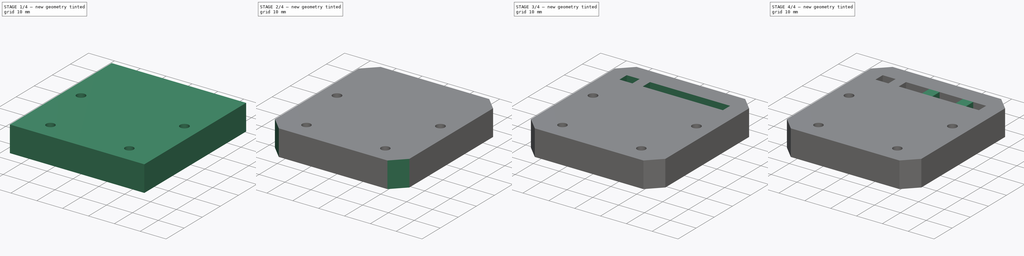
[diagram: build sequence overview — one tinted view per stage of 4, left to right]
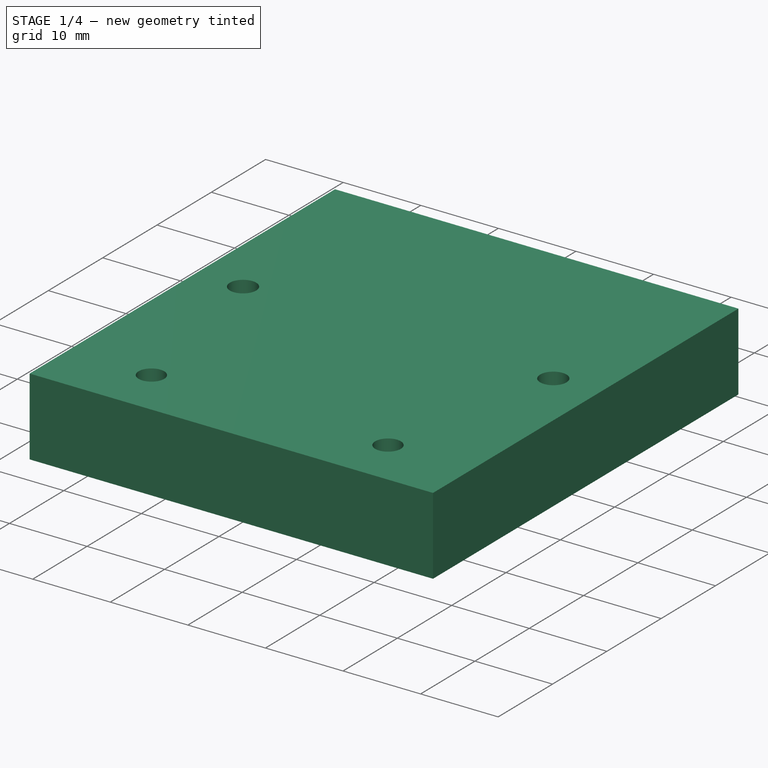
[diagram: stage 1 of 4 — iso view after this stage's code; geometry added in this stage tinted green]
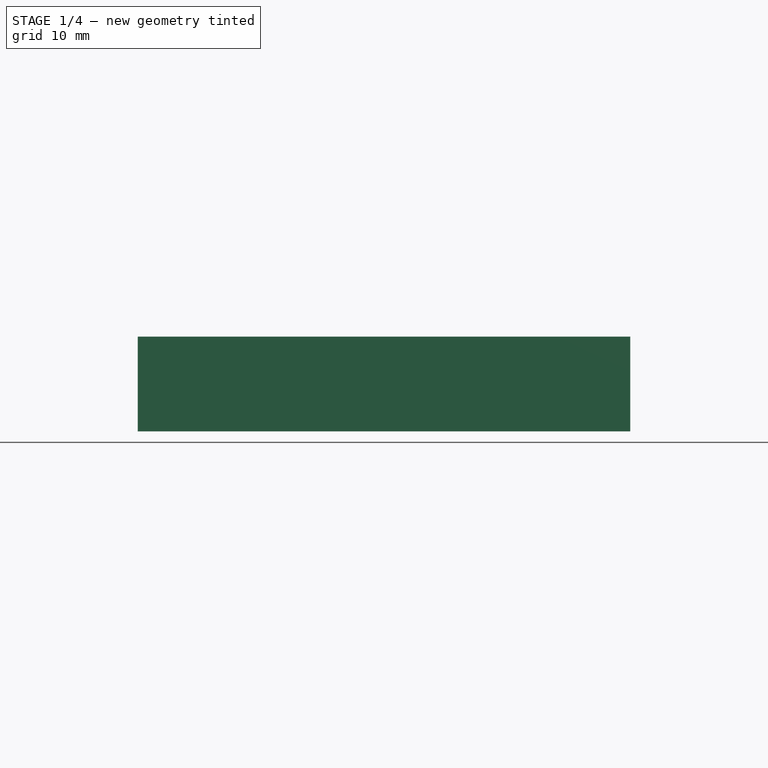
[diagram: stage 1 of 4 — front view after this stage's code; geometry added in this stage tinted green]
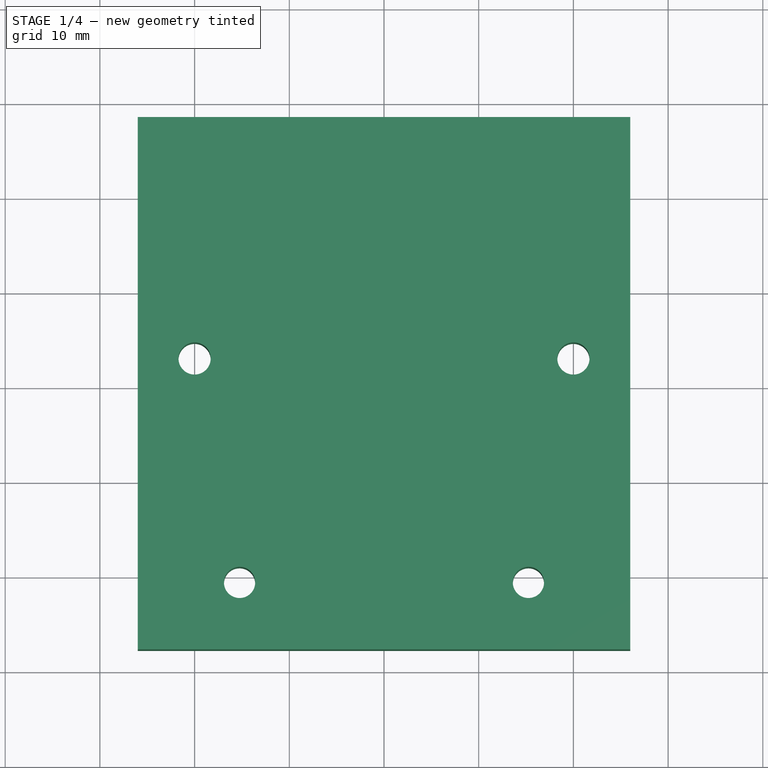
[diagram: stage 1 of 4 — top view after this stage's code; geometry added in this stage tinted green]
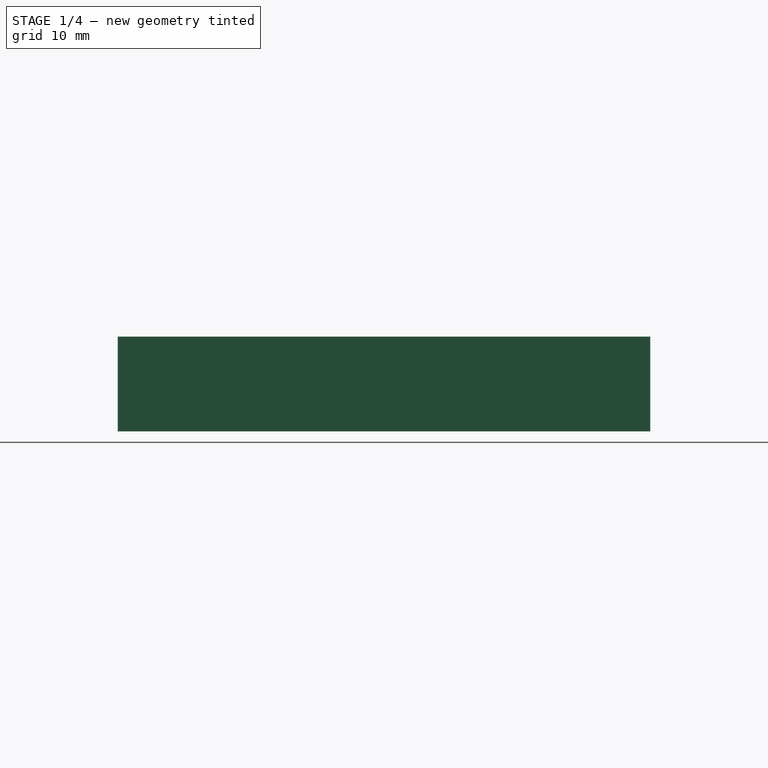
[diagram: stage 1 of 4 — right view after this stage's code; geometry added in this stage tinted green]
FCSTD DOCUMENT  (FreeCAD 0.19R)
Label: hotend-diamond-holder
License: All rights reserved
LicenseURL: http://en.wikipedia.org/wiki/All_rights_reserved
objects: Sketcher::SketchObject×6, PartDesign::Pad×3, PartDesign::Pocket×3, Part::Feature×1, PartDesign::ShapeBinder×1, PartDesign::Chamfer×1, PartDesign::LinearPattern×1, PartDesign::Fillet×1, PartDesign::Body×1
note: 26 computed .brp shape members not serialized (recipe doc carries the construction recipe); baked Part::Feature solids carry a one-line shape summary decoded from their .brp

FEATURE [Part::Feature] Body001
  shape: bbox 54.15 x 85.15 x 20 mm, 245 faces (baked)
FEATURE [PartDesign::ShapeBinder] ShapeBinder
  Support = -> [Body001]
  TraceSupport = false
FEATURE [Sketcher::SketchObject] Sketch
  ExternalGeometry = -> [ShapeBinder]
  FullyConstrained = true
  MapMode = 5
  Placement = pos=(0,0,0) rot=(1,0,0;3.14159rad)
  Support = -> [ShapeBinder]
  sketch-geometry (6):
    g0: LineSegment StartX=26 StartY=7.72233 StartZ=0 EndX=-26 EndY=7.72233 EndZ=0
    g1: LineSegment StartX=-26 StartY=7.72233 StartZ=0 EndX=-26 EndY=-48.5 EndZ=0
    g2: LineSegment StartX=-26 StartY=-48.5 StartZ=0 EndX=26 EndY=-48.5 EndZ=0
    g3: LineSegment StartX=26 StartY=-48.5 StartZ=0 EndX=26 EndY=7.72233 EndZ=0
    g4: Circle CenterX=-20 CenterY=-23 CenterZ=0 NormalX=0 NormalY=0 NormalZ=1 AngleXU=0 Radius=1.7
    g5: Circle CenterX=20 CenterY=-23 CenterZ=0 NormalX=0 NormalY=0 NormalZ=1 AngleXU=0 Radius=1.7
  constraints (15):
    c: Coincident(g0,g1)
    c: Coincident(g1,g2)
    c: Coincident(g2,g3)
    c: Coincident(g3,g0)
    c: Horizontal(g0)
    c: Horizontal(g2)
    c: Vertical(g1)
    c: Vertical(g3)
    c: Coincident(g0,g-4)
    c: PointOnObject(g1,g-6)
    c: PointOnObject(g-7,g2)
    c: Coincident(g4,g-8)
    c: Coincident(g5,g-9)
    c: Equal(g5,g4)
    c: Equal(g4,g-8)
FEATURE [PartDesign::Pad] Pad
  Direction = (1,1,1)
  Length = 10
  Length2 = 100
  Profile = -> Sketch
  Type = 0
FEATURE [Sketcher::SketchObject] Sketch001
  ExternalGeometry = -> [ShapeBinder]
  FullyConstrained = true
  MapMode = 5
  Support = -> [Pad]
  sketch-geometry (3):
    g0: LineSegment StartX=-20.5 StartY=-0.65 StartZ=0 EndX=20.5 EndY=-0.65 EndZ=0
    g1: Circle CenterX=-15.25 CenterY=-0.65 CenterZ=0 NormalX=0 NormalY=0 NormalZ=1 AngleXU=0 Radius=1.65
    g2: Circle CenterX=15.25 CenterY=-0.65 CenterZ=0 NormalX=0 NormalY=0 NormalZ=1 AngleXU=0 Radius=1.65
  constraints (8):
    c: PointOnObject(g0,g-3)
    c: PointOnObject(g0,g-4)
    c: Symmetric(g-4,g-4,g0)
    c: PointOnObject(g1,g0)
    c: Distance(g2,g1) = 30.5
    c: Symmetric(g1,g2,g-2)
    c: Radius(g1) = 1.65
    c: Equal(g1,g2)
FEATURE [PartDesign::Pocket] Pocket
  BaseFeature = -> Pad
  Length = 5
  Length2 = 100
  Profile = -> Sketch001
  Type = 1
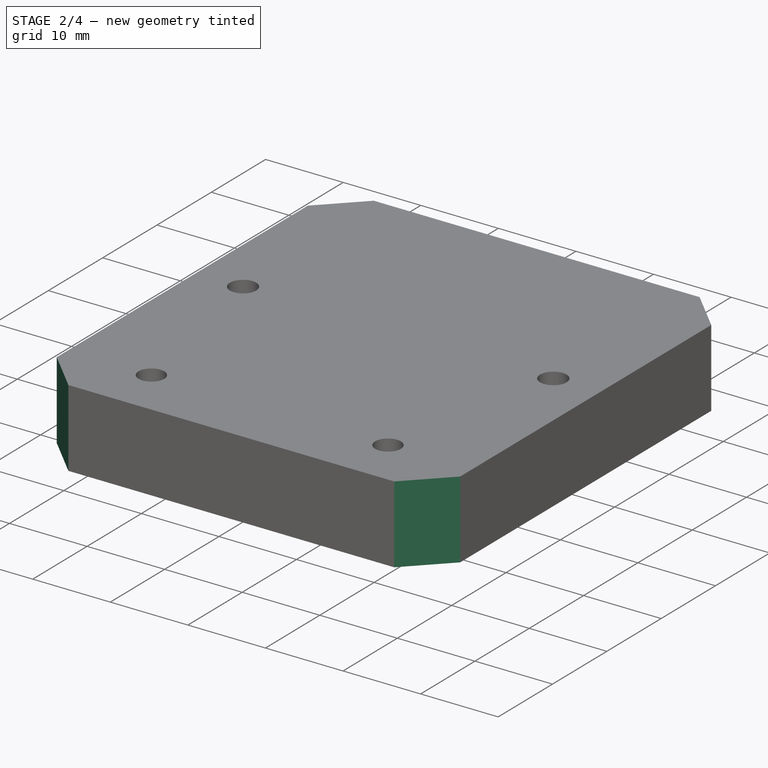
[diagram: stage 2 of 4 — iso view after this stage's code; geometry added in this stage tinted green]
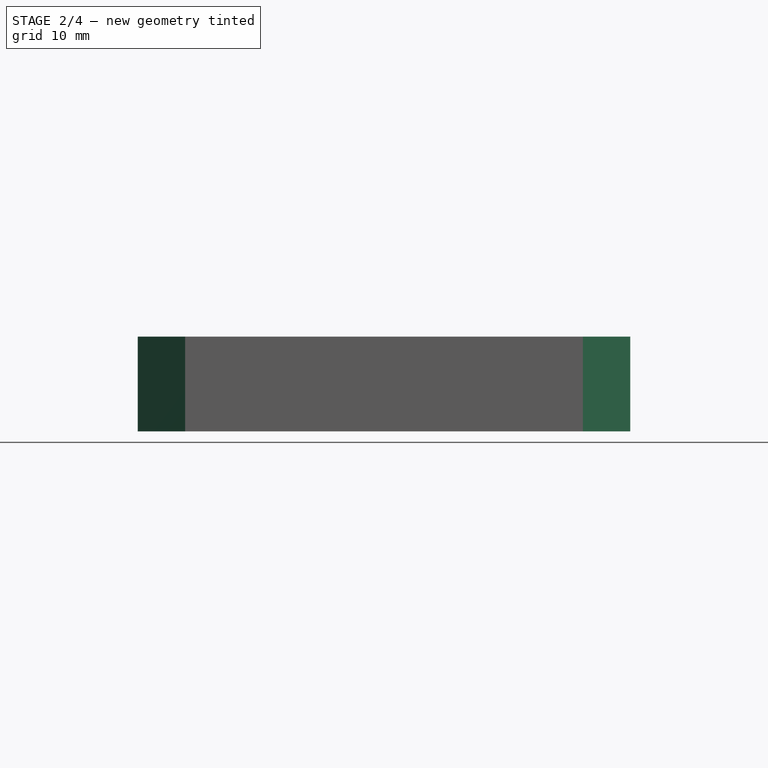
[diagram: stage 2 of 4 — front view after this stage's code; geometry added in this stage tinted green]
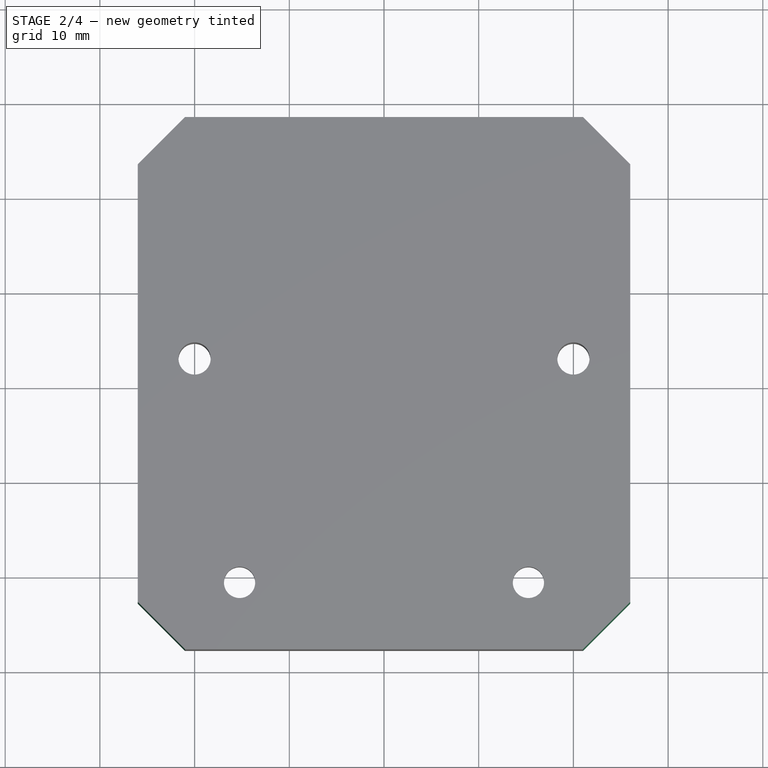
[diagram: stage 2 of 4 — top view after this stage's code; geometry added in this stage tinted green]
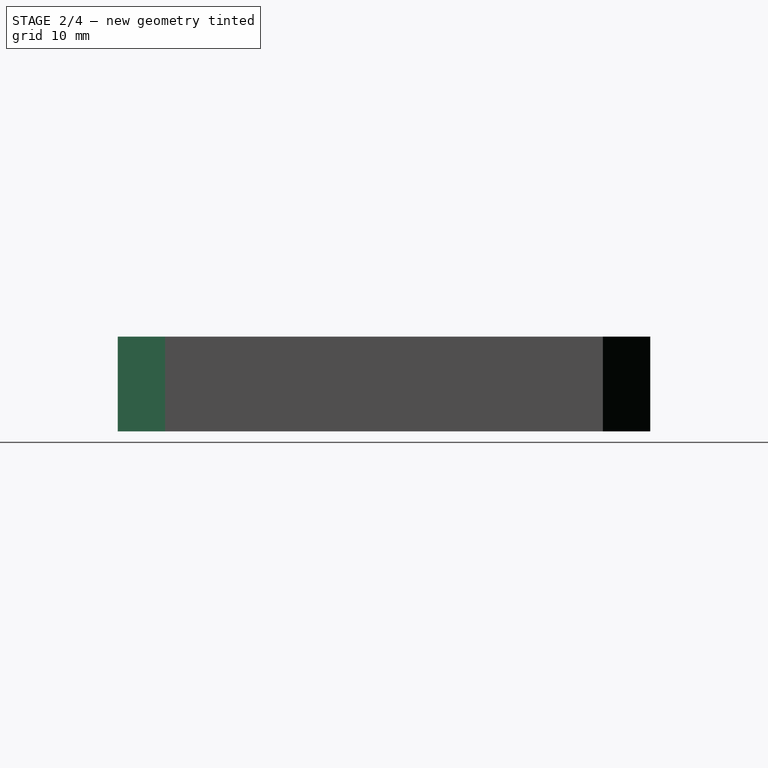
[diagram: stage 2 of 4 — right view after this stage's code; geometry added in this stage tinted green]
FEATURE [PartDesign::Chamfer] Chamfer
  Angle = 45
  Base = -> Pocket [Edge8,Edge5,Edge1,Edge2]
  BaseFeature = -> Pocket
  ChamferType = 0
  FlipDirection = false
  Size = 5
  Size2 = 1
  SupportTransform = false
FEATURE [Sketcher::SketchObject] Sketch002
  ExternalGeometry = -> [Chamfer]
  FullyConstrained = true
  MapMode = 5
  Placement = pos=(0,0,-10) rot=(1,0,0;3.14159rad)
  Support = -> [Chamfer]
  sketch-geometry (2):
    g0: Circle CenterX=-15.25 CenterY=0.65 CenterZ=0 NormalX=0 NormalY=0 NormalZ=1 AngleXU=0 Radius=3.1
    g1: Circle CenterX=15.25 CenterY=0.65 CenterZ=0 NormalX=0 NormalY=0 NormalZ=1 AngleXU=0 Radius=3.1
  constraints (4):
    c: Coincident(g0,g-3)
    c: Coincident(g1,g-4)
    c: Radius(g1) = 3.1
    c: Equal(g1,g0)
FEATURE [PartDesign::Pocket] Pocket001
  BaseFeature = -> Chamfer
  Length = 5.7
  Length2 = 100
  Profile = -> Sketch002
  Type = 0
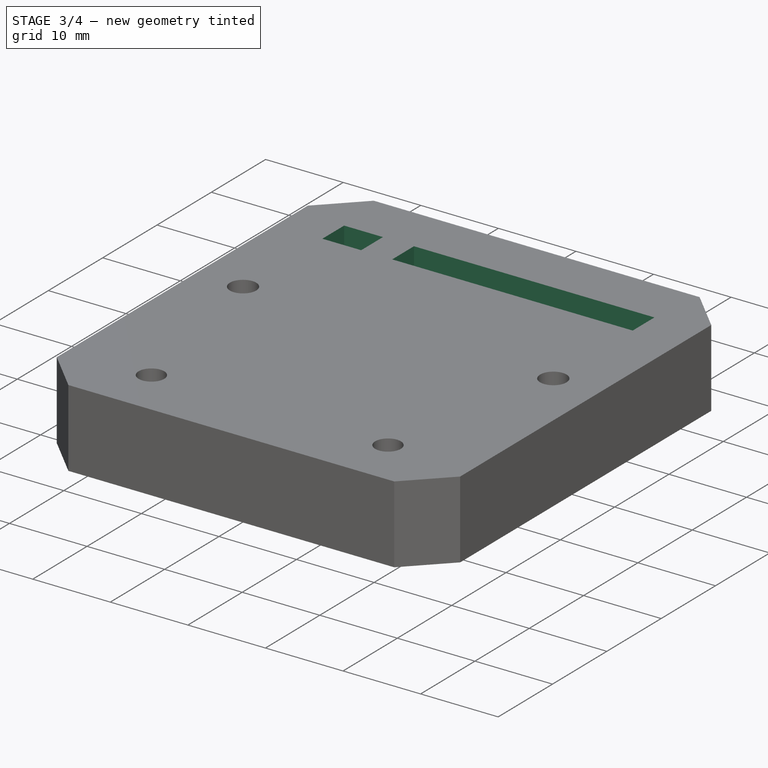
[diagram: stage 3 of 4 — iso view after this stage's code; geometry added in this stage tinted green]
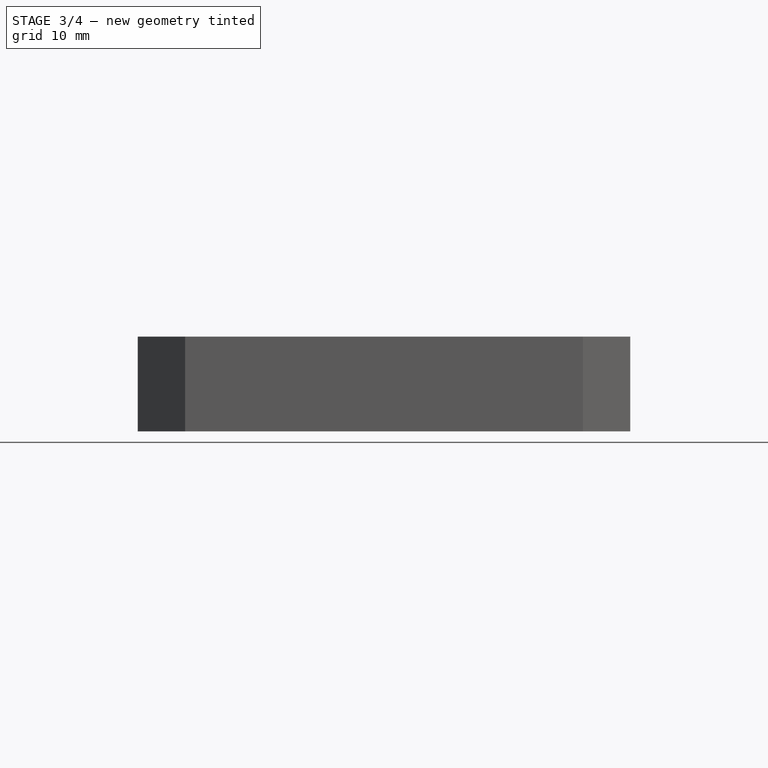
[diagram: stage 3 of 4 — front view after this stage's code; geometry added in this stage tinted green]
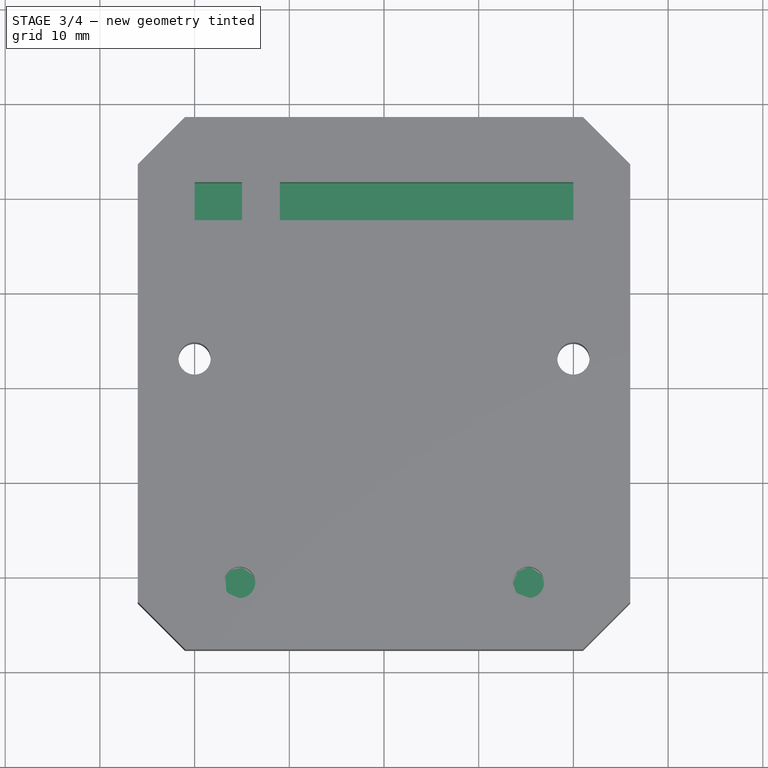
[diagram: stage 3 of 4 — top view after this stage's code; geometry added in this stage tinted green]
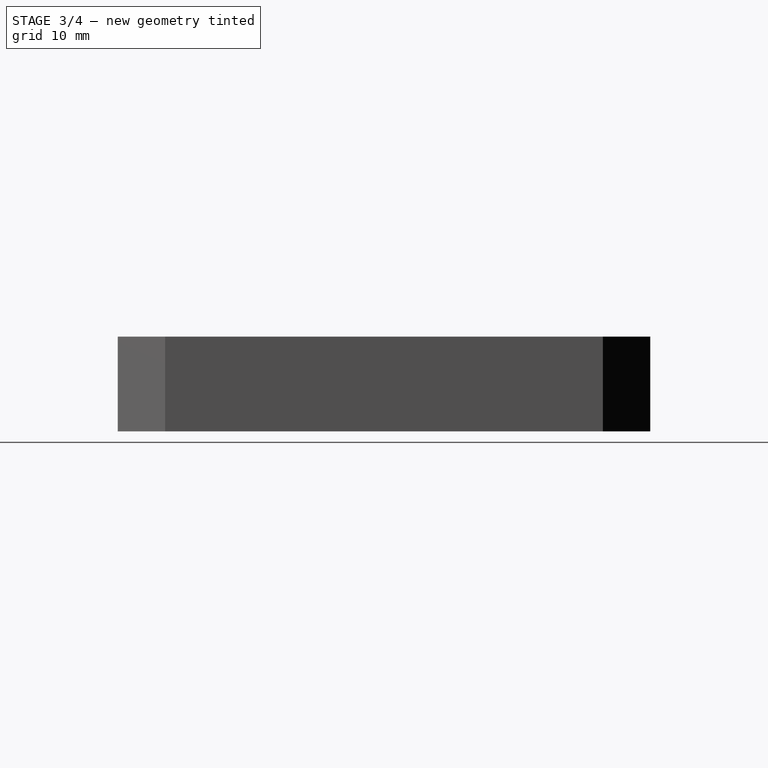
[diagram: stage 3 of 4 — right view after this stage's code; geometry added in this stage tinted green]
FEATURE [Sketcher::SketchObject] Sketch003
  ExternalGeometry = -> [Pocket001]
  FullyConstrained = true
  MapMode = 5
  Placement = pos=(0,0,-4.3) rot=(1,0,0;3.14159rad)
  Support = -> [Pocket001]
  sketch-geometry (2):
    g0: Circle CenterX=-15.25 CenterY=0.65 CenterZ=0 NormalX=0 NormalY=0 NormalZ=1 AngleXU=0 Radius=1.65
    g1: Circle CenterX=15.25 CenterY=0.65 CenterZ=0 NormalX=0 NormalY=0 NormalZ=1 AngleXU=0 Radius=1.65
  constraints (4):
    c: Coincident(g0,g-3)
    c: Coincident(g1,g-4)
    c: Equal(g0,g1)
    c: Equal(g1,g-3)
FEATURE [PartDesign::Pad] Pad001
  BaseFeature = -> Pocket001
  Direction = (1,1,1)
  Length = 0.2
  Length2 = 100
  Profile = -> Sketch003
  Refine = true
  Reversed = true
  Type = 0
FEATURE [Sketcher::SketchObject] Sketch004
  FullyConstrained = false
  MapMode = 5
  Support = -> [Pad001]
  sketch-geometry (4):
    g0: LineSegment StartX=-20 StartY=41.6105 StartZ=0 EndX=20 EndY=41.6105 EndZ=0
    g1: LineSegment StartX=20 StartY=41.6105 StartZ=0 EndX=20 EndY=37.6105 EndZ=0
    g2: LineSegment StartX=20 StartY=37.6105 StartZ=0 EndX=-20 EndY=37.6105 EndZ=0
    g3: LineSegment StartX=-20 StartY=37.6105 StartZ=0 EndX=-20 EndY=41.6105 EndZ=0
  constraints (10):
    c: Coincident(g0,g1)
    c: Coincident(g1,g2)
    c: Coincident(g2,g3)
    c: Coincident(g3,g0)
    c: Horizontal(g0)
    c: Vertical(g1)
    c: Vertical(g3)
    c: DistanceY(g3,g3) = 4
    c: Symmetric(g1,g2,g-2)
    c: DistanceX(g0,g0) = 40
FEATURE [PartDesign::Pocket] Pocket002
  BaseFeature = -> Pad001
  Length = 6
  Length2 = 100
  Profile = -> Sketch004
  Type = 0
FEATURE [Sketcher::SketchObject] Sketch005
  ExternalGeometry = -> [Pocket002]
  FullyConstrained = true
  MapMode = 5
  Support = -> [Pocket002]
  sketch-geometry (4):
    g0: LineSegment StartX=-15 StartY=41.6105 StartZ=0 EndX=-11 EndY=41.6105 EndZ=0
    g1: LineSegment StartX=-11 StartY=41.6105 StartZ=0 EndX=-11 EndY=37.6105 EndZ=0
    g2: LineSegment StartX=-11 StartY=37.6105 StartZ=0 EndX=-15 EndY=37.6105 EndZ=0
    g3: LineSegment StartX=-15 StartY=37.6105 StartZ=0 EndX=-15 EndY=41.6105 EndZ=0
  constraints (12):
    c: Coincident(g0,g1)
    c: Coincident(g1,g2)
    c: Coincident(g2,g3)
    c: Coincident(g3,g0)
    c: Horizontal(g0)
    c: Horizontal(g2)
    c: Vertical(g1)
    c: Vertical(g3)
    c: PointOnObject(g0,g-3)
    c: PointOnObject(g1,g-4)
    c: DistanceX(g0,g0) = 4
    c: Distance(g2,g-4) = 5
FEATURE [PartDesign::Pad] Pad002
  BaseFeature = -> Pocket002
  Direction = (1,1,1)
  Length = 2.5
  Length2 = 100
  Profile = -> Sketch005
  Reversed = true
  Type = 0
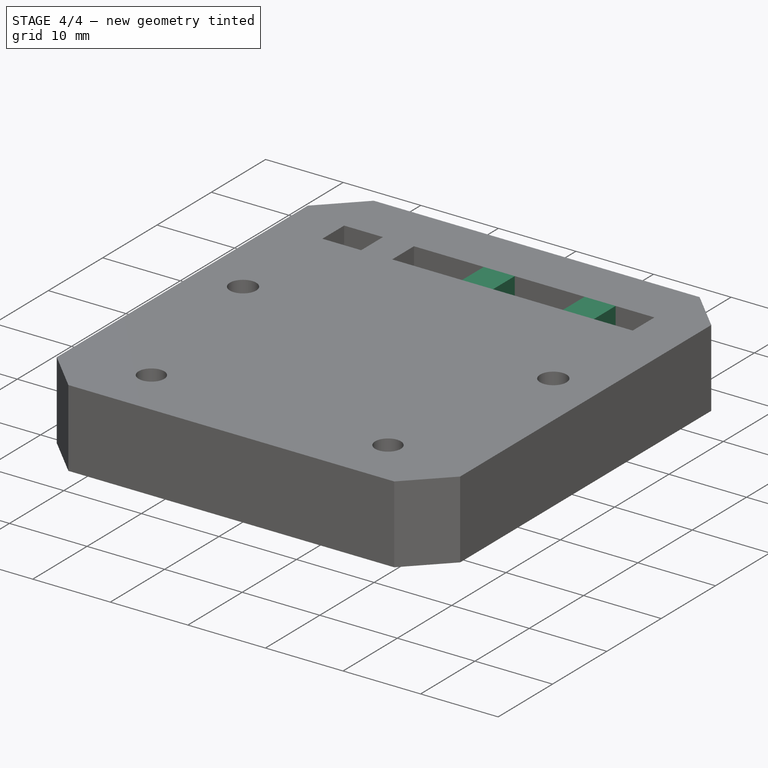
[diagram: stage 4 of 4 — iso view after this stage's code; geometry added in this stage tinted green]
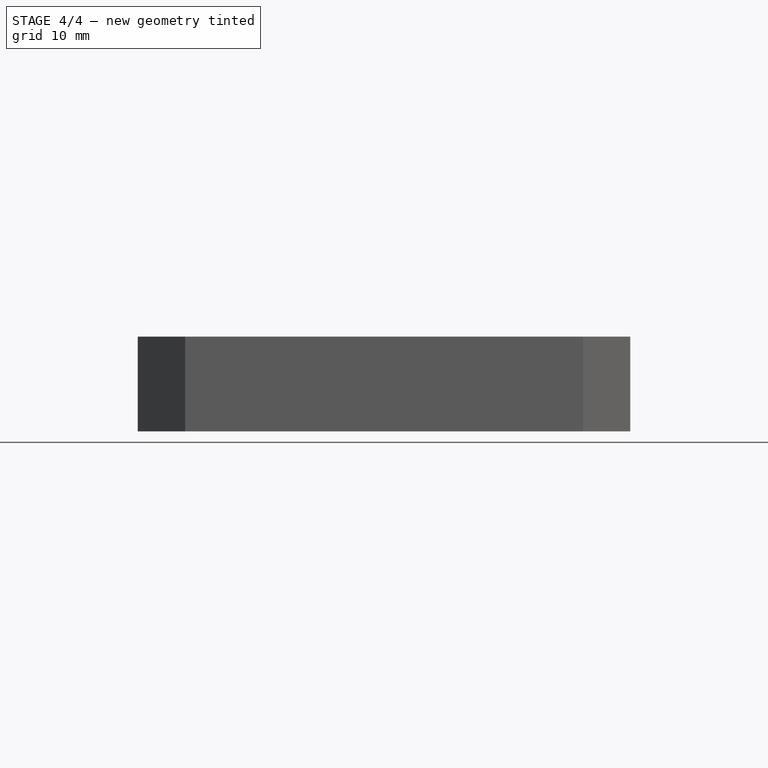
[diagram: stage 4 of 4 — front view after this stage's code; geometry added in this stage tinted green]
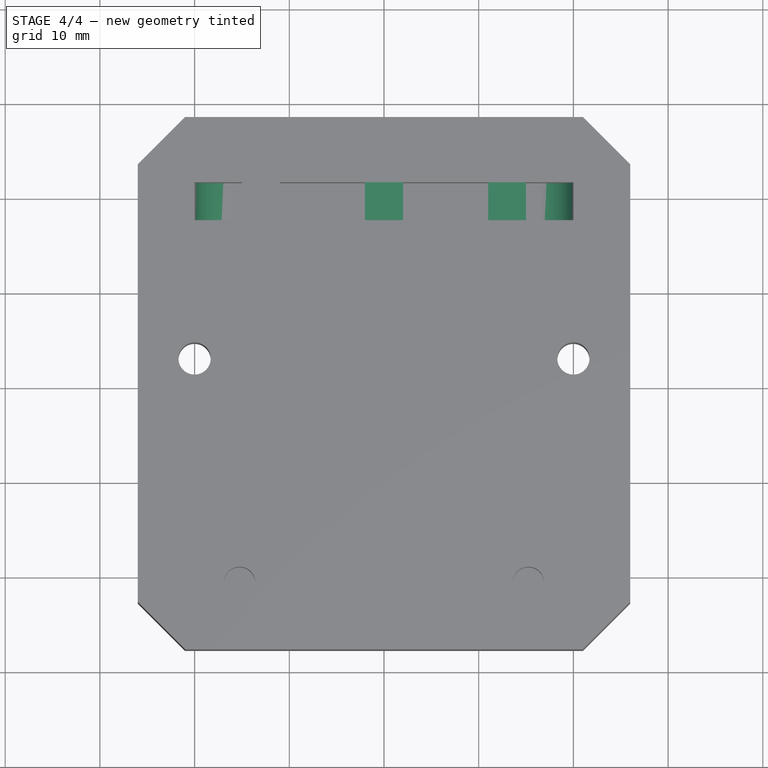
[diagram: stage 4 of 4 — top view after this stage's code; geometry added in this stage tinted green]
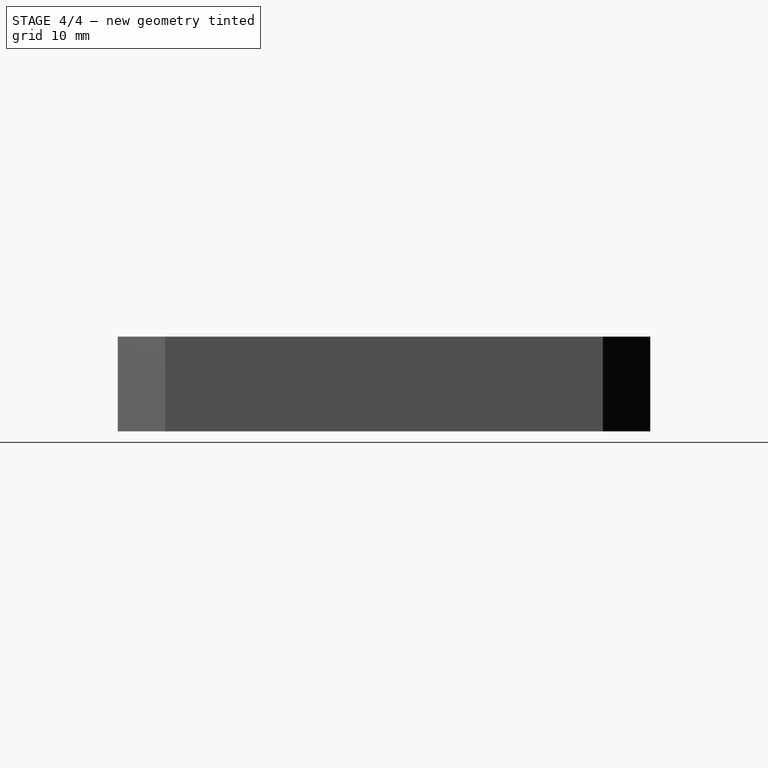
[diagram: stage 4 of 4 — right view after this stage's code; geometry added in this stage tinted green]
FEATURE [PartDesign::LinearPattern] LinearPattern
  BaseFeature = -> Pad002
  Direction = -> Sketch005 [H_Axis]
  Length = 26
  Occurrences = 3
  Originals = -> [Pad002]
  Refine = true
FEATURE [PartDesign::Fillet] Fillet
  Base = -> LinearPattern [Edge68,Edge80]
  BaseFeature = -> LinearPattern
  Radius = 4
  SupportTransform = false
FEATURE [PartDesign::Body] Body
  Group = -> [ShapeBinder,Sketch,Pad,Sketch001,Pocket,Chamfer,Sketch002,Pocket001,Sketch003,Pad001,Sketch004,Pocket002,Sketch005,Pad002,LinearPattern,Fillet]
  Origin = -> Origin
  Tip = -> Fillet
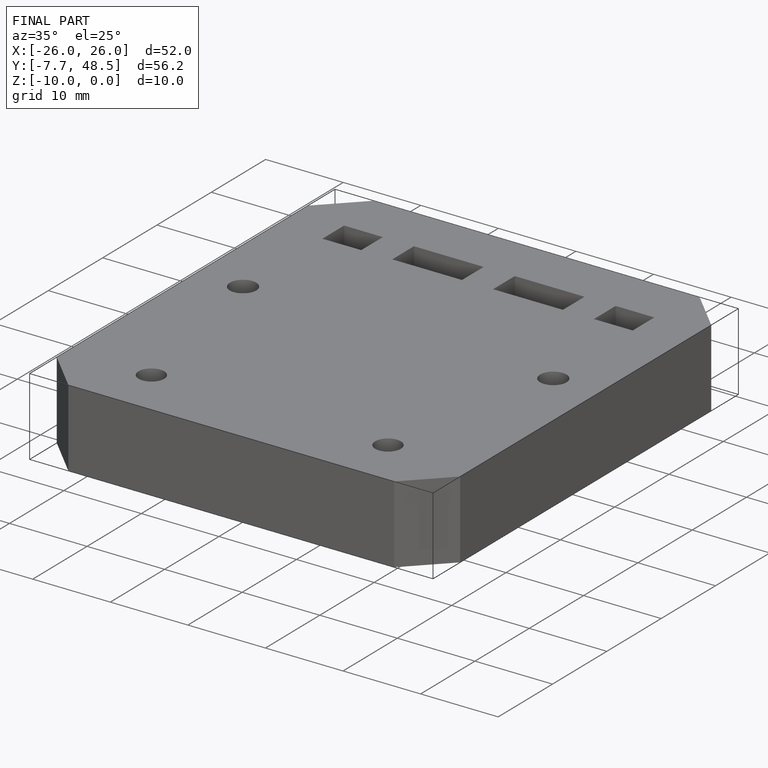
[diagram: finished part — iso view with bounding-box wireframe]
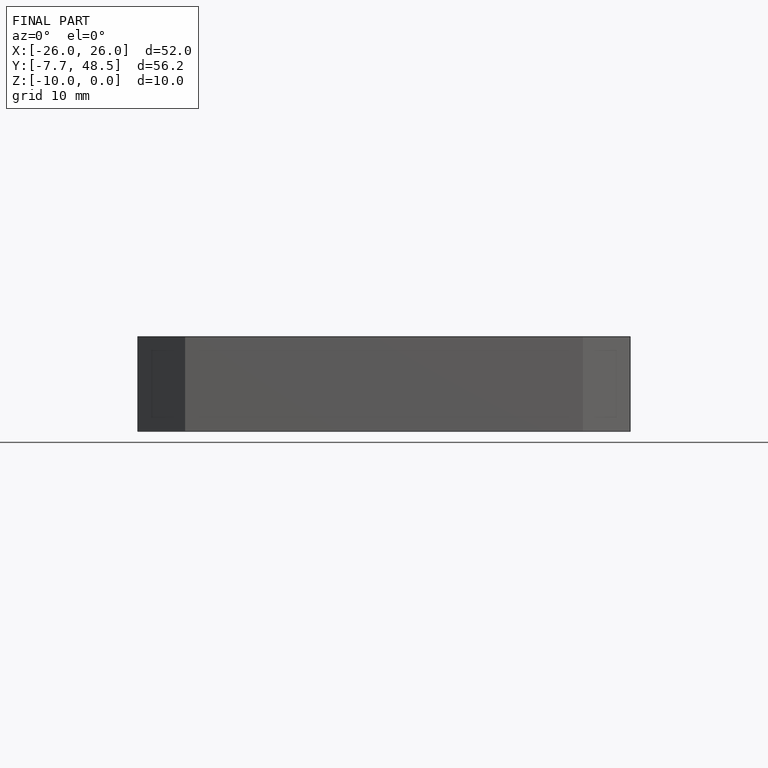
[diagram: finished part — front view with bounding-box wireframe]
